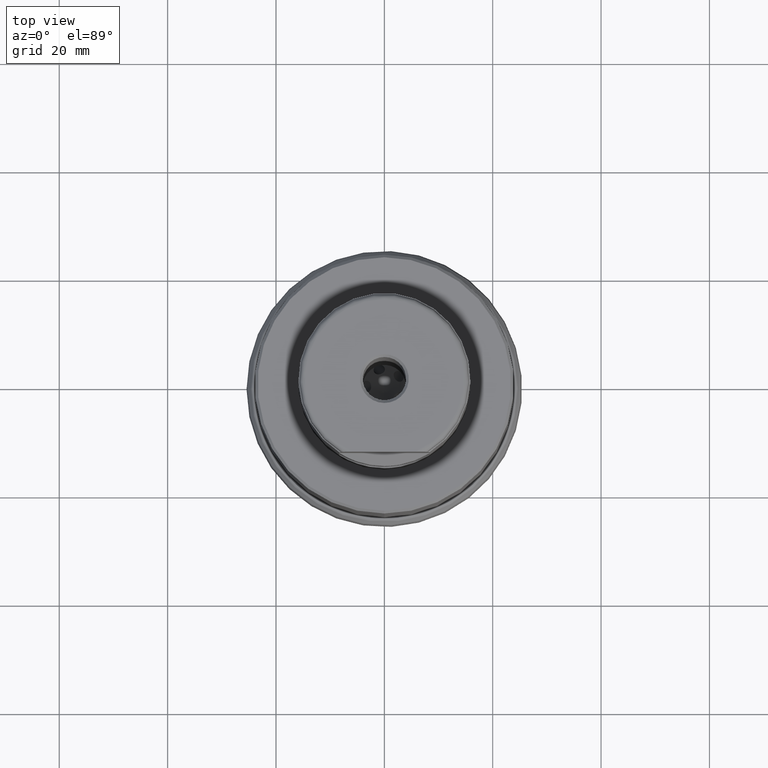
[diagram: clean part render]
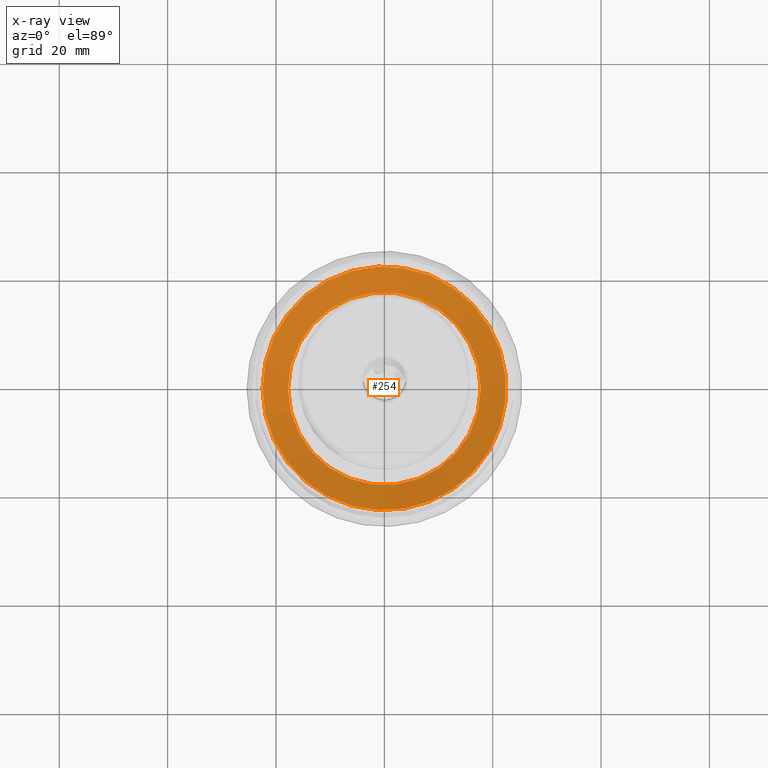
[diagram: x-ray — body ghosted, one internal face saturated and labeled with its STEP entity id]
A machine part, top view, then the same camera in x-ray: the body is ghosted and one INTERNAL B-rep face — a face not visible from any outside direction — is saturated and labeled: STEP entity #254.
In plain terms, the highlighted face is a SurfaceOfRevolution surface.
Its self-contained STEP definition (entity closure, byte-faithful):
#113=SURFACE_OF_REVOLUTION('',#1140,#136);
#136=AXIS1_PLACEMENT('',#2763,#1503);
#254=ADVANCED_FACE('',(#446,#447),#113,.F.);
#340=CIRCLE('',#1259,17.7861932706913);
#341=CIRCLE('',#1260,22.4962827091189);
#446=FACE_BOUND('',#580,.T.);
#447=FACE_BOUND('',#581,.T.);
#580=EDGE_LOOP('',(#835));
#581=EDGE_LOOP('',(#836));
#835=ORIENTED_EDGE('',*,*,#1062,.T.);
#836=ORIENTED_EDGE('',*,*,#1063,.F.);
#949=VERTEX_POINT('',#2747);
#950=VERTEX_POINT('',#2756);
#1062=EDGE_CURVE('',#949,#949,#340,.T.);
#1063=EDGE_CURVE('',#950,#950,#341,.T.);
#1140=B_SPLINE_CURVE_WITH_KNOTS('',5,(#2757,#2758,#2759,#2760,#2761,#2762),
 .UNSPECIFIED.,.F.,.F.,(6,6),(0.,1.),.UNSPECIFIED.);
#1259=AXIS2_PLACEMENT_3D('',#2746,#1498,#1499);
#1260=AXIS2_PLACEMENT_3D('',#2755,#1501,#1502);
#1498=DIRECTION('',(0.,0.,-1.));
#1499=DIRECTION('',(-1.,0.,0.));
#1501=DIRECTION('',(0.,0.,-1.));
#1502=DIRECTION('',(-1.,0.,0.));
#1503=DIRECTION('',(0.,0.,-1.));
#2746=CARTESIAN_POINT('',(0.,0.,6.97545285357589));
#2747=CARTESIAN_POINT('',(-17.7861932706913,0.,6.97545285357589));
#2755=CARTESIAN_POINT('',(0.,0.,9.64905371509138));
#2756=CARTESIAN_POINT('',(-22.4962827091189,0.,9.64905371509138));
#2757=CARTESIAN_POINT('',(19.4823523168134,-11.2481413545595,9.6490537150908));
#2758=CARTESIAN_POINT('',(18.6545842021982,-10.7702292107598,9.13915830294168));
#2759=CARTESIAN_POINT('',(17.8326096905059,-10.2956620051672,8.61672085086613));
#2760=CARTESIAN_POINT('',(17.0165990871626,-9.82453806366539,8.08190729330068));
#2761=CARTESIAN_POINT('',(16.2067454260039,-9.35696883439119,7.53481108380012));
#2762=CARTESIAN_POINT('',(15.4032952090385,-8.89309663534573,6.97545285357589));
#2763=CARTESIAN_POINT('',(0.,0.,0.));